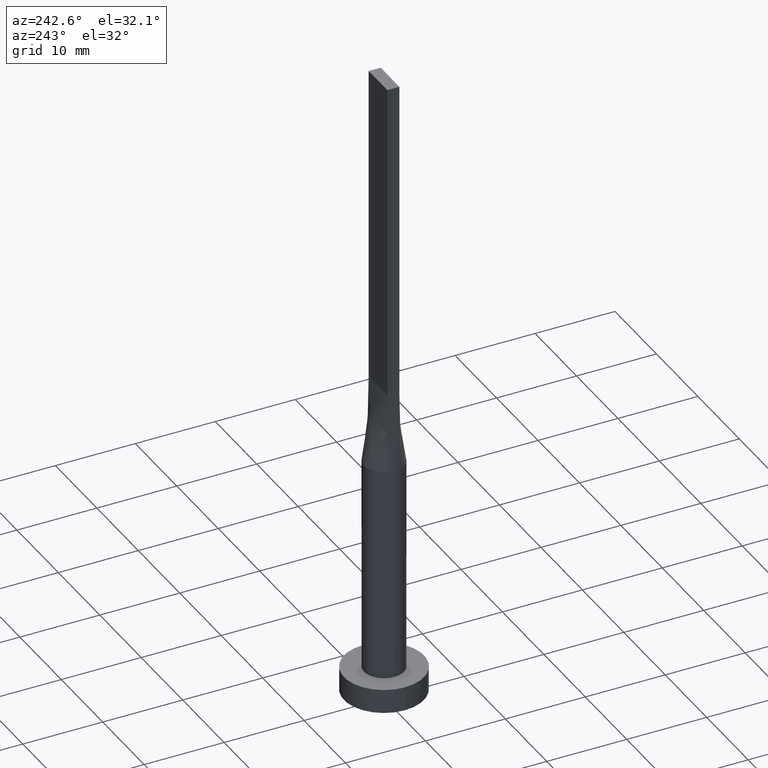
[diagram: clean part render]
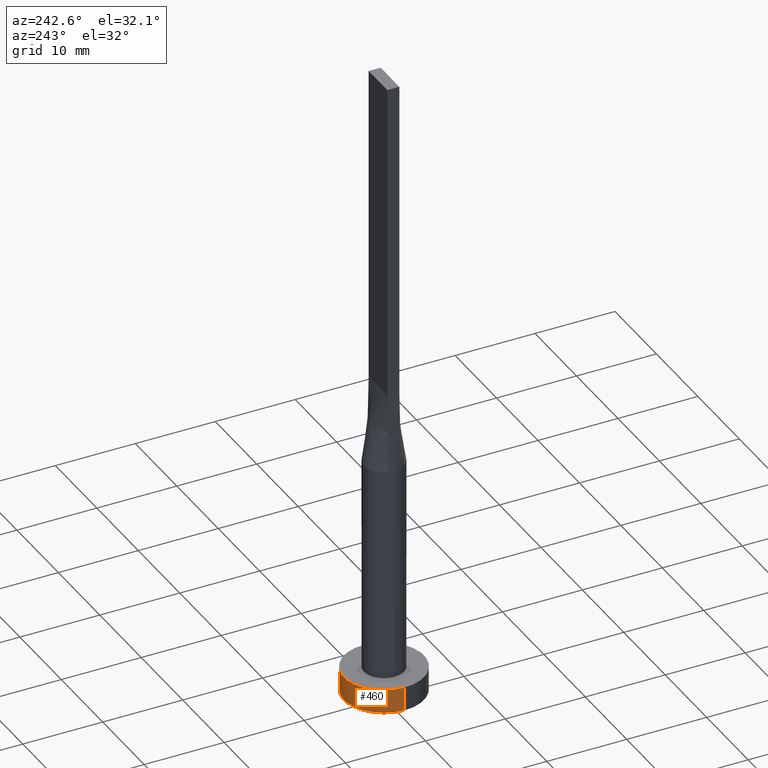
[diagram: same view with one face highlighted and labeled with its STEP entity id]
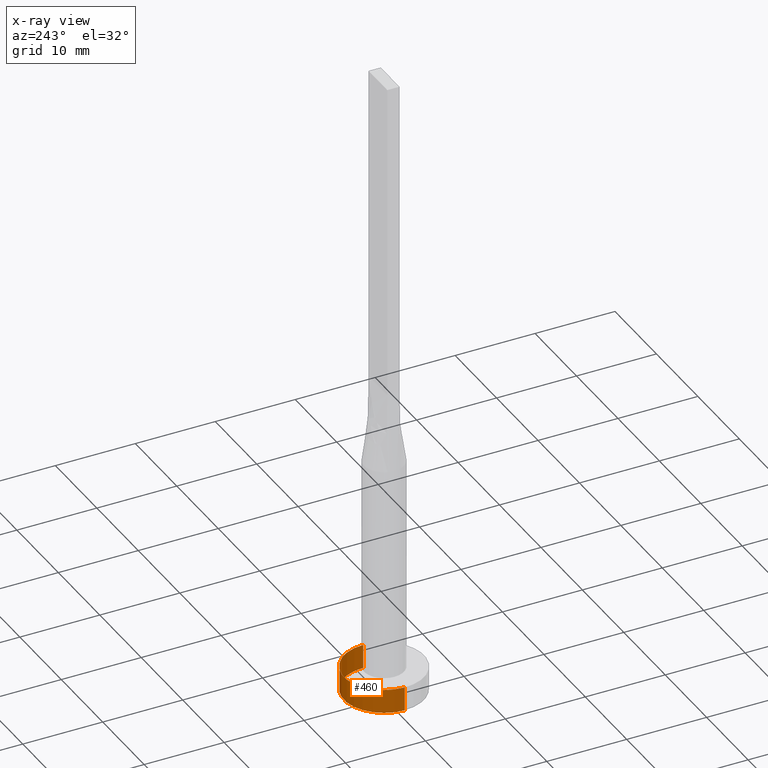
[diagram: x-ray of the same camera — body ghosted, the highlighted face saturated]
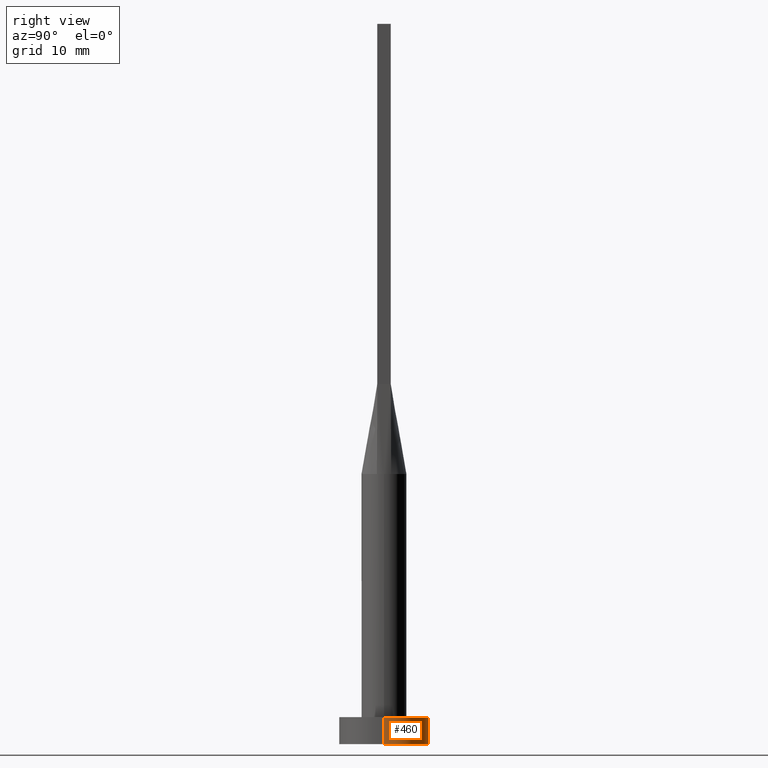
[diagram: same view with one face highlighted and labeled with its STEP entity id]
A machine part, auxiliary view. The second image highlights one B-rep face of the part: STEP entity #460.
The next image is the same camera in x-ray: the body ghosted, the highlighted face saturated — about 0% of this face is hidden behind the body in this view.
A second angle (right view) of the same face is appended — the face is thin or edge-on in the first view.
In plain terms, the highlighted cylindrical surface (partial cylindrical patch) has radius 5 mm, axis along (-0, -0, -1).
Its self-contained STEP definition (entity closure, byte-faithful):
#5 = CARTESIAN_POINT ( 'NONE',  ( 0.000000000000000000, 0.000000000000000000, 3.000000000000000000 ) ) ;
#7 = CARTESIAN_POINT ( 'NONE',  ( -5.000000000000000000, 0.000000000000000000, 0.000000000000000000 ) ) ;
#8 = CARTESIAN_POINT ( 'NONE',  ( 5.000000000000000000, 6.123233995736766282E-16, 3.000000000000000000 ) ) ;
#65 = CARTESIAN_POINT ( 'NONE',  ( -5.000000000000000000, 0.000000000000000000, 3.000000000000000000 ) ) ;
#75 = CARTESIAN_POINT ( 'NONE',  ( -5.000000000000000000, 0.000000000000000000, 3.000000000000000000 ) ) ;
#83 = CYLINDRICAL_SURFACE ( 'NONE', #537, 5.000000000000000000 ) ;
#91 = EDGE_CURVE ( 'NONE', #230, #341, #113, .T. ) ;
#113 = CIRCLE ( 'NONE', #448, 5.000000000000000000 ) ;
#122 = CARTESIAN_POINT ( 'NONE',  ( 0.000000000000000000, 0.000000000000000000, 3.000000000000000000 ) ) ;
#138 = LINE ( 'NONE', #65, #227 ) ;
#161 = VECTOR ( 'NONE', #226, 1000.000000000000000 ) ;
#188 = DIRECTION ( 'NONE',  ( 1.000000000000000000, 0.000000000000000000, 0.000000000000000000 ) ) ;
#223 = AXIS2_PLACEMENT_3D ( 'NONE', #303, #390, #568 ) ;
#226 = DIRECTION ( 'NONE',  ( -0.000000000000000000, -0.000000000000000000, -1.000000000000000000 ) ) ;
#227 = VECTOR ( 'NONE', #523, 1000.000000000000000 ) ;
#230 = VERTEX_POINT ( 'NONE', #508 ) ;
#252 = ORIENTED_EDGE ( 'NONE', *, *, #297, .F. ) ;
#260 = EDGE_CURVE ( 'NONE', #230, #455, #416, .T. ) ;
#261 = EDGE_LOOP ( 'NONE', ( #422, #339, #397, #252 ) ) ;
#297 = EDGE_CURVE ( 'NONE', #341, #487, #138, .T. ) ;
#303 = CARTESIAN_POINT ( 'NONE',  ( 0.000000000000000000, 0.000000000000000000, 0.000000000000000000 ) ) ;
#339 = ORIENTED_EDGE ( 'NONE', *, *, #260, .T. ) ;
#341 = VERTEX_POINT ( 'NONE', #75 ) ;
#349 = CARTESIAN_POINT ( 'NONE',  ( 5.000000000000000000, 6.123233995736766282E-16, 0.000000000000000000 ) ) ;
#390 = DIRECTION ( 'NONE',  ( 0.000000000000000000, 0.000000000000000000, 1.000000000000000000 ) ) ;
#394 = FACE_OUTER_BOUND ( 'NONE', #261, .T. ) ;
#397 = ORIENTED_EDGE ( 'NONE', *, *, #541, .T. ) ;
#416 = LINE ( 'NONE', #8, #161 ) ;
#419 = CIRCLE ( 'NONE', #223, 5.000000000000000000 ) ;
#422 = ORIENTED_EDGE ( 'NONE', *, *, #91, .F. ) ;
#448 = AXIS2_PLACEMENT_3D ( 'NONE', #5, #506, #188 ) ;
#455 = VERTEX_POINT ( 'NONE', #349 ) ;
#460 = ADVANCED_FACE ( 'NONE', ( #394 ), #83, .T. ) ;
#487 = VERTEX_POINT ( 'NONE', #7 ) ;
#494 = DIRECTION ( 'NONE',  ( -0.000000000000000000, -0.000000000000000000, -1.000000000000000000 ) ) ;
#506 = DIRECTION ( 'NONE',  ( 0.000000000000000000, 0.000000000000000000, 1.000000000000000000 ) ) ;
#508 = CARTESIAN_POINT ( 'NONE',  ( 5.000000000000000000, 6.123233995736766282E-16, 3.000000000000000000 ) ) ;
#523 = DIRECTION ( 'NONE',  ( -0.000000000000000000, -0.000000000000000000, -1.000000000000000000 ) ) ;
#528 = DIRECTION ( 'NONE',  ( -1.000000000000000000, 0.000000000000000000, 0.000000000000000000 ) ) ;
#537 = AXIS2_PLACEMENT_3D ( 'NONE', #122, #494, #528 ) ;
#541 = EDGE_CURVE ( 'NONE', #455, #487, #419, .T. ) ;
#568 = DIRECTION ( 'NONE',  ( 1.000000000000000000, 0.000000000000000000, 0.000000000000000000 ) ) ;